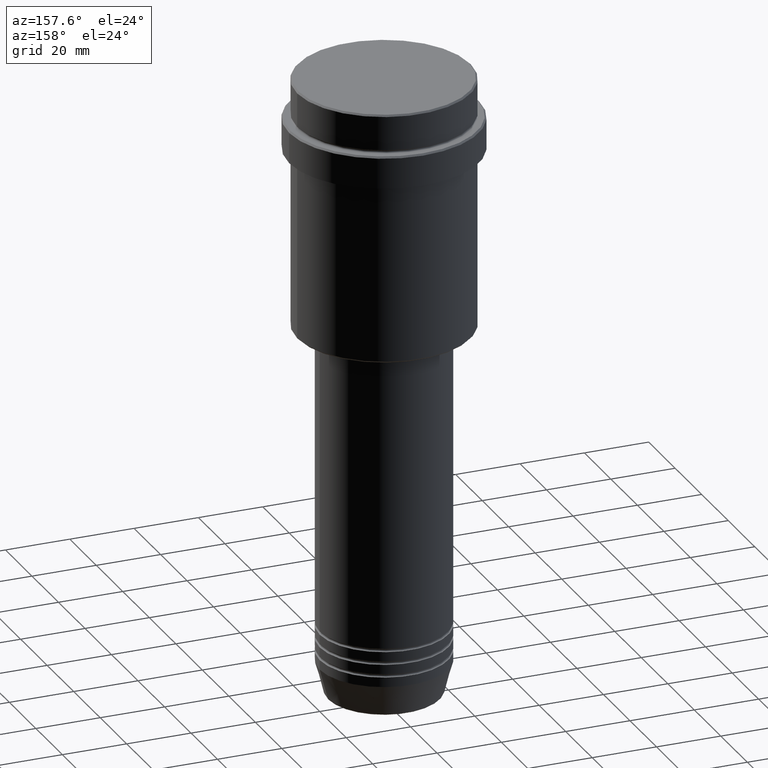
[diagram: clean part render]
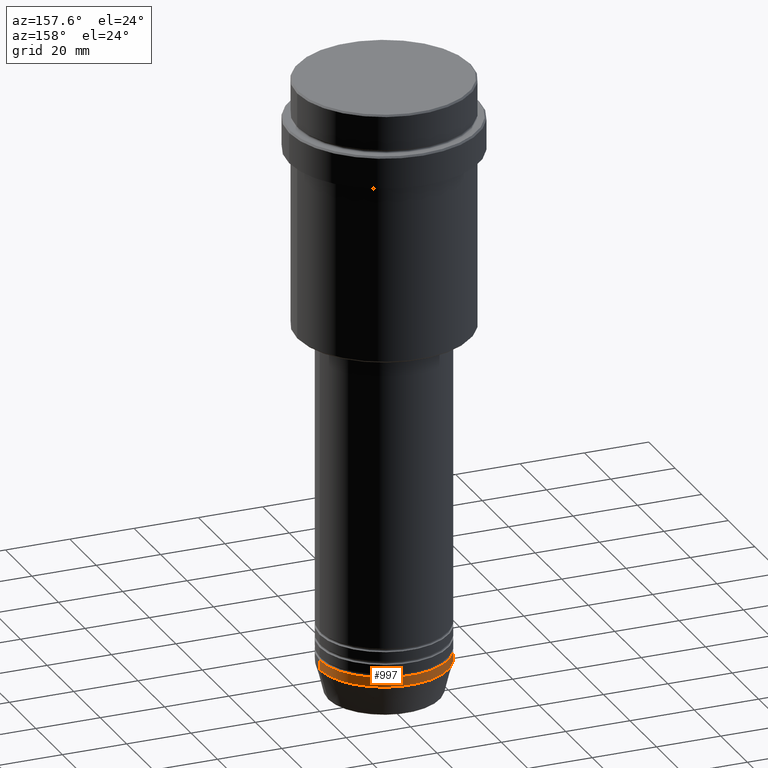
[diagram: same view with one face highlighted and labeled with its STEP entity id]
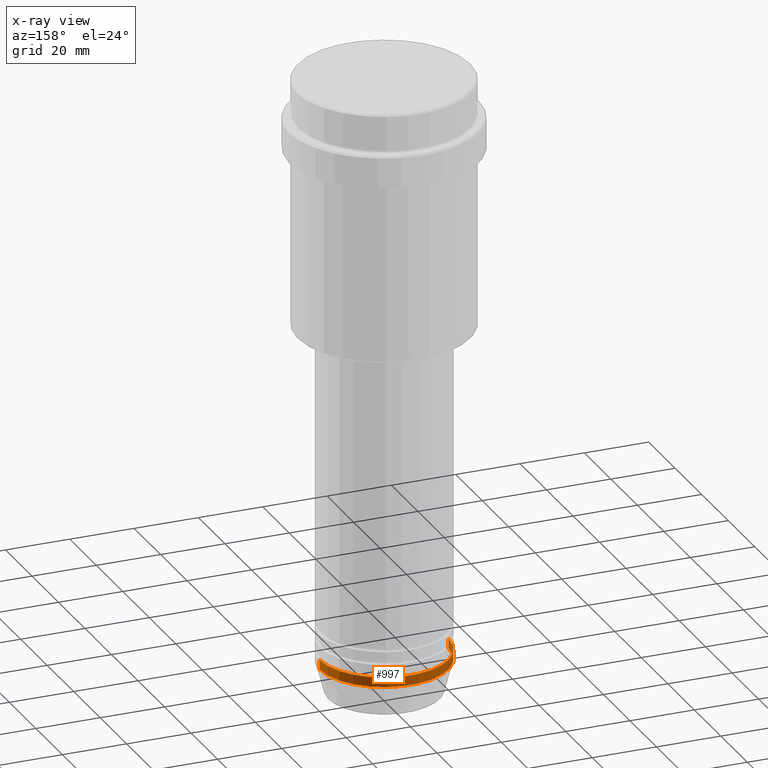
[diagram: x-ray of the same camera — body ghosted, the highlighted face saturated]
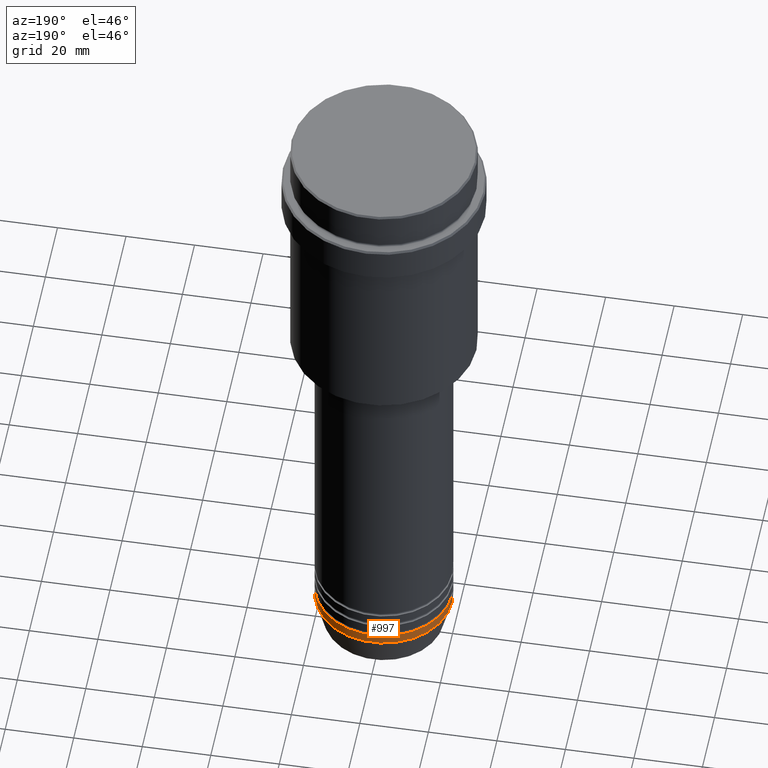
[diagram: same view with one face highlighted and labeled with its STEP entity id]
A machine part, auxiliary view. The second image highlights one B-rep face of the part: STEP entity #997.
The next image is the same camera in x-ray: the body ghosted, the highlighted face saturated — about 0% of this face is hidden behind the body in this view.
A second angle (auxiliary view) of the same face is appended — the face is thin or edge-on in the first view.
In plain terms, the highlighted cylindrical surface (partial cylindrical patch) has radius 20 mm, axis along (-0, -0, 1).
Its self-contained STEP definition (entity closure, byte-faithful):
#20 = CARTESIAN_POINT ( 'NONE',  ( -20.00000000000000000, 2.449293598294706513E-15, -180.0000000000000000 ) ) ;
#27 = CARTESIAN_POINT ( 'NONE',  ( -20.00000000000000000, 2.449293598294706513E-15, -183.0000000000000000 ) ) ;
#67 = AXIS2_PLACEMENT_3D ( 'NONE', #1092, #679, #993 ) ;
#70 = VERTEX_POINT ( 'NONE', #20 ) ;
#136 = EDGE_CURVE ( 'NONE', #1120, #1332, #398, .T. ) ;
#147 = LINE ( 'NONE', #241, #645 ) ;
#152 = CYLINDRICAL_SURFACE ( 'NONE', #1214, 20.00000000000000000 ) ;
#241 = CARTESIAN_POINT ( 'NONE',  ( -20.00000000000000000, 2.449293598294706513E-15, 0.000000000000000000 ) ) ;
#257 = ORIENTED_EDGE ( 'NONE', *, *, #1344, .F. ) ;
#286 = EDGE_LOOP ( 'NONE', ( #1003, #1336, #257, #336 ) ) ;
#299 = CARTESIAN_POINT ( 'NONE',  ( 0.000000000000000000, 0.000000000000000000, -183.0000000000000000 ) ) ;
#312 = DIRECTION ( 'NONE',  ( 1.000000000000000000, 0.000000000000000000, 0.000000000000000000 ) ) ;
#336 = ORIENTED_EDGE ( 'NONE', *, *, #136, .F. ) ;
#376 = EDGE_CURVE ( 'NONE', #465, #70, #147, .T. ) ;
#381 = DIRECTION ( 'NONE',  ( 1.000000000000000000, 0.000000000000000000, 0.000000000000000000 ) ) ;
#385 = DIRECTION ( 'NONE',  ( -0.000000000000000000, -0.000000000000000000, 1.000000000000000000 ) ) ;
#392 = CIRCLE ( 'NONE', #67, 20.00000000000000000 ) ;
#398 = LINE ( 'NONE', #1037, #570 ) ;
#465 = VERTEX_POINT ( 'NONE', #27 ) ;
#570 = VECTOR ( 'NONE', #385, 1000.000000000000000 ) ;
#585 = DIRECTION ( 'NONE',  ( -0.000000000000000000, -0.000000000000000000, 1.000000000000000000 ) ) ;
#645 = VECTOR ( 'NONE', #585, 1000.000000000000000 ) ;
#653 = CARTESIAN_POINT ( 'NONE',  ( 20.00000000000000000, 0.000000000000000000, -180.0000000000000000 ) ) ;
#679 = DIRECTION ( 'NONE',  ( -0.000000000000000000, -0.000000000000000000, 1.000000000000000000 ) ) ;
#720 = CARTESIAN_POINT ( 'NONE',  ( 0.000000000000000000, 0.000000000000000000, 0.000000000000000000 ) ) ;
#745 = EDGE_CURVE ( 'NONE', #1120, #465, #1012, .T. ) ;
#871 = CARTESIAN_POINT ( 'NONE',  ( 20.00000000000000000, 0.000000000000000000, -183.0000000000000000 ) ) ;
#993 = DIRECTION ( 'NONE',  ( 1.000000000000000000, 0.000000000000000000, 0.000000000000000000 ) ) ;
#997 = ADVANCED_FACE ( 'NONE', ( #1251 ), #152, .T. ) ;
#1003 = ORIENTED_EDGE ( 'NONE', *, *, #745, .T. ) ;
#1012 = CIRCLE ( 'NONE', #1104, 20.00000000000000000 ) ;
#1033 = DIRECTION ( 'NONE',  ( -0.000000000000000000, -0.000000000000000000, 1.000000000000000000 ) ) ;
#1037 = CARTESIAN_POINT ( 'NONE',  ( 20.00000000000000000, 0.000000000000000000, 0.000000000000000000 ) ) ;
#1092 = CARTESIAN_POINT ( 'NONE',  ( 0.000000000000000000, 0.000000000000000000, -180.0000000000000000 ) ) ;
#1104 = AXIS2_PLACEMENT_3D ( 'NONE', #299, #1406, #312 ) ;
#1120 = VERTEX_POINT ( 'NONE', #871 ) ;
#1214 = AXIS2_PLACEMENT_3D ( 'NONE', #720, #1033, #381 ) ;
#1251 = FACE_OUTER_BOUND ( 'NONE', #286, .T. ) ;
#1332 = VERTEX_POINT ( 'NONE', #653 ) ;
#1336 = ORIENTED_EDGE ( 'NONE', *, *, #376, .T. ) ;
#1344 = EDGE_CURVE ( 'NONE', #1332, #70, #392, .T. ) ;
#1406 = DIRECTION ( 'NONE',  ( -0.000000000000000000, -0.000000000000000000, 1.000000000000000000 ) ) ;